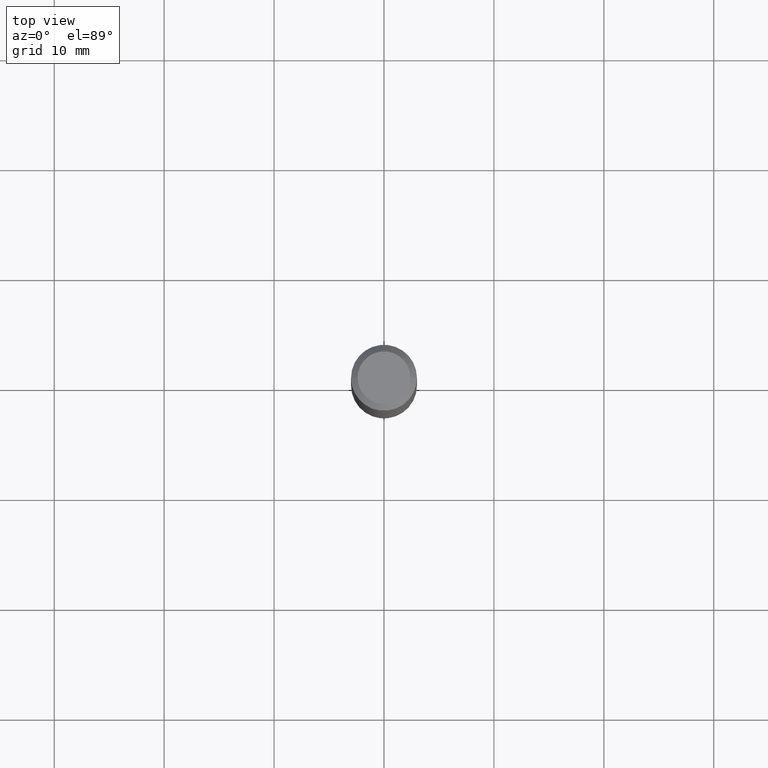
[diagram: clean part render]
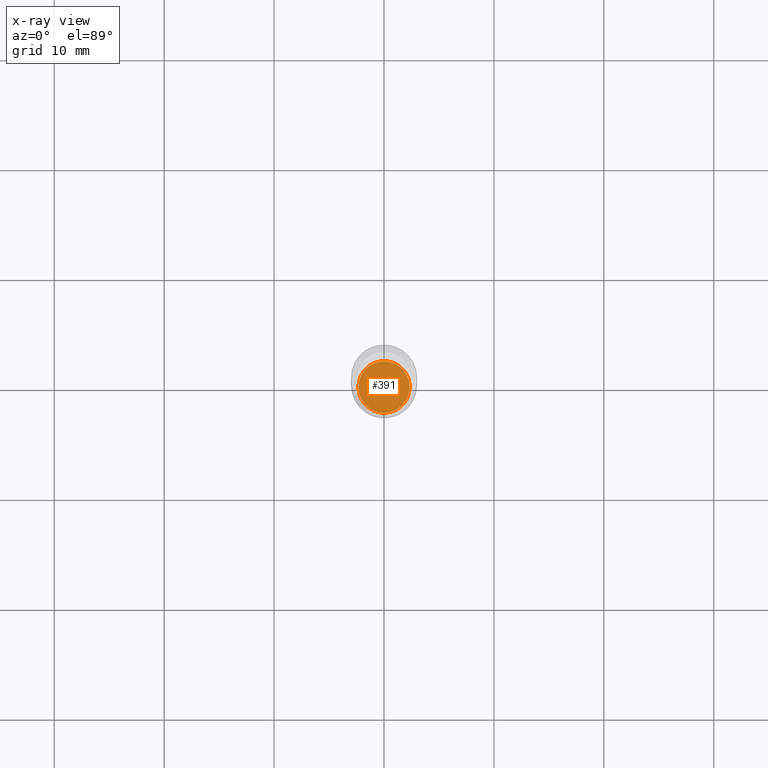
[diagram: x-ray — body ghosted, one internal face saturated and labeled with its STEP entity id]
A machine part, top view, then the same camera in x-ray: the body is ghosted and one INTERNAL B-rep face — a face not visible from any outside direction — is saturated and labeled: STEP entity #391.
In plain terms, the highlighted planar face has unit normal (-0, 0, 1).
Its self-contained STEP definition (entity closure, byte-faithful):
#6 = CARTESIAN_POINT ( 'NONE',  ( 4.717553874011746679E-29, -6.735416650762311704E-15, -1.929099999999999815 ) ) ;
#26 = AXIS2_PLACEMENT_3D ( 'NONE', #6, #81, #79 ) ;
#45 = CARTESIAN_POINT ( 'NONE',  ( 4.717553874011746679E-29, -6.735416650762311704E-15, -1.929099999999999815 ) ) ;
#79 = DIRECTION ( 'NONE',  ( 1.000000000000000000, -6.982962677686265922E-15, 4.876176775795935793E-29 ) ) ;
#81 = DIRECTION ( 'NONE',  ( -2.438088387897960049E-29, 3.491481338843145188E-15, 1.000000000000000000 ) ) ;
#114 = CIRCLE ( 'NONE', #178, 0.09199999999999999845 ) ;
#118 = FACE_OUTER_BOUND ( 'NONE', #385, .T. ) ;
#119 = CARTESIAN_POINT ( 'NONE',  ( 0.09199999999999999845, -7.377849217109447894E-15, -1.929099999999999815 ) ) ;
#125 = CIRCLE ( 'NONE', #240, 0.09199999999999999845 ) ;
#157 = EDGE_CURVE ( 'NONE', #424, #219, #114, .T. ) ;
#158 = DIRECTION ( 'NONE',  ( 1.000000000000000000, -6.982962677686269866E-15, 0.000000000000000000 ) ) ;
#164 = PLANE ( 'NONE',  #26 ) ;
#172 = ORIENTED_EDGE ( 'NONE', *, *, #430, .F. ) ;
#178 = AXIS2_PLACEMENT_3D ( 'NONE', #205, #431, #340 ) ;
#205 = CARTESIAN_POINT ( 'NONE',  ( 4.717553874011746679E-29, -6.735416650762311704E-15, -1.929099999999999815 ) ) ;
#219 = VERTEX_POINT ( 'NONE', #119 ) ;
#240 = AXIS2_PLACEMENT_3D ( 'NONE', #45, #490, #158 ) ;
#267 = ORIENTED_EDGE ( 'NONE', *, *, #157, .F. ) ;
#340 = DIRECTION ( 'NONE',  ( 1.000000000000000000, -6.982962677686269866E-15, 0.000000000000000000 ) ) ;
#385 = EDGE_LOOP ( 'NONE', ( #172, #267 ) ) ;
#391 = ADVANCED_FACE ( 'NONE', ( #118 ), #164, .F. ) ;
#424 = VERTEX_POINT ( 'NONE', #448 ) ;
#430 = EDGE_CURVE ( 'NONE', #219, #424, #125, .T. ) ;
#431 = DIRECTION ( 'NONE',  ( -2.445468806185136597E-29, 3.491481338843145583E-15, 1.000000000000000000 ) ) ;
#448 = CARTESIAN_POINT ( 'NONE',  ( -0.09199999999999999845, -6.079068106688908540E-15, -1.929099999999999815 ) ) ;
#490 = DIRECTION ( 'NONE',  ( -2.445468806185136597E-29, 3.491481338843145583E-15, 1.000000000000000000 ) ) ;